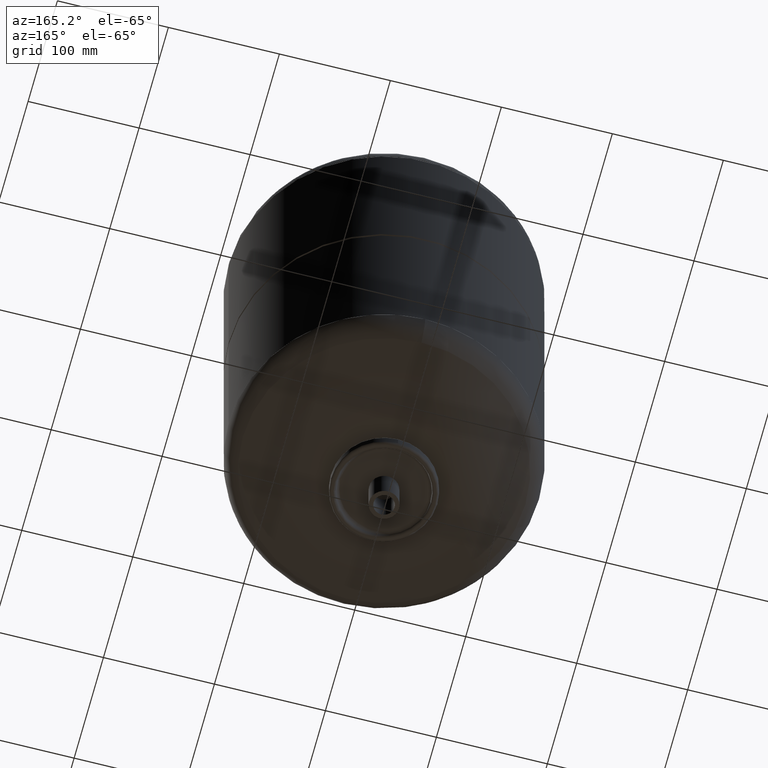
[diagram: clean part render]
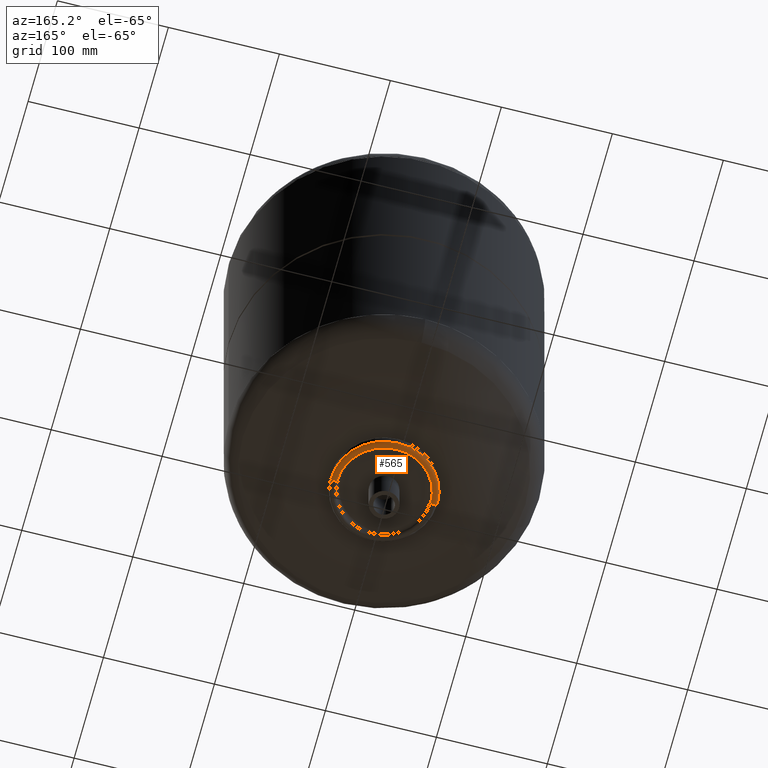
[diagram: same view with one face highlighted and labeled with its STEP entity id]
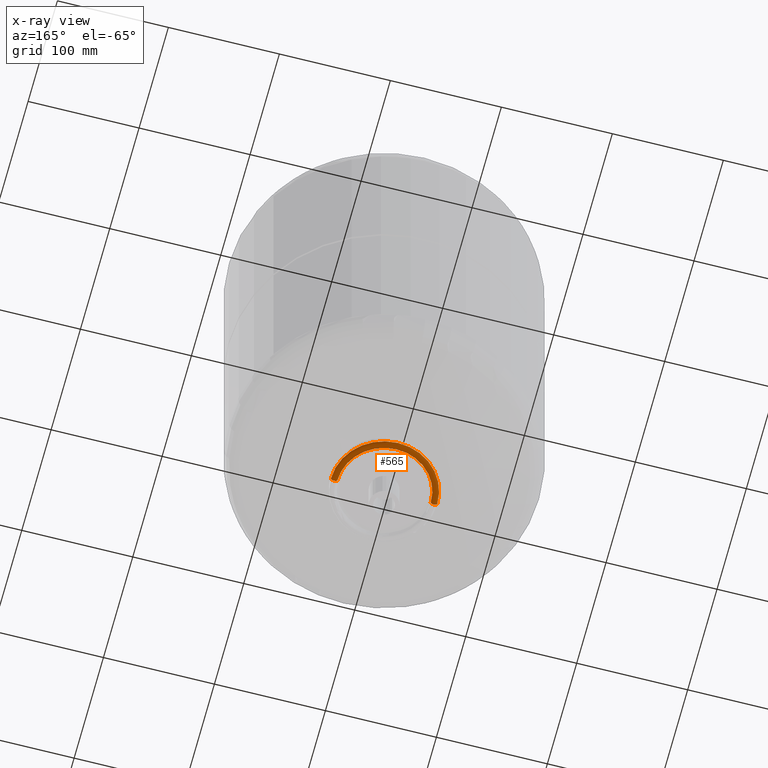
[diagram: x-ray of the same camera — body ghosted, the highlighted face saturated]
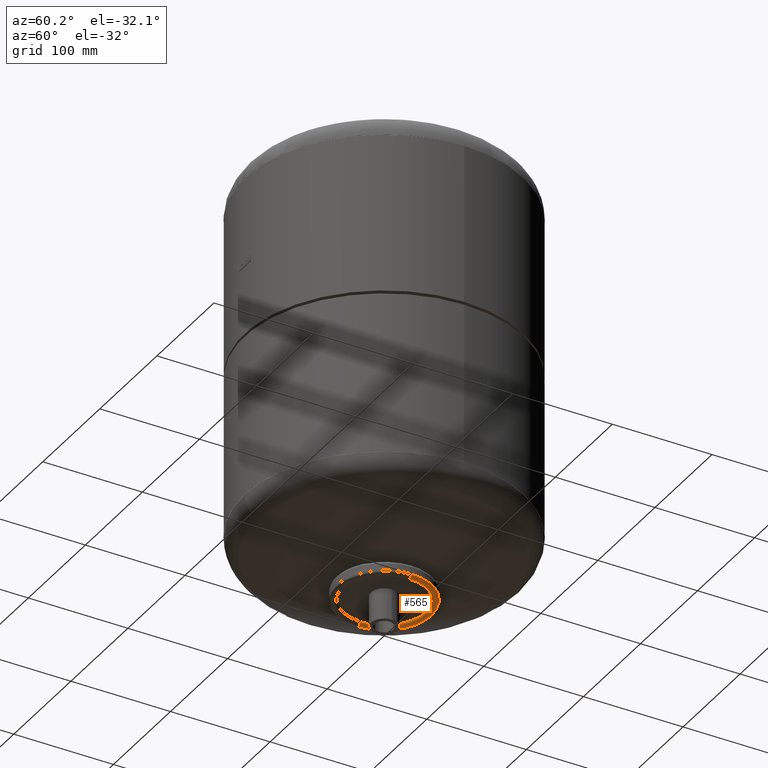
[diagram: same view with one face highlighted and labeled with its STEP entity id]
A machine part, auxiliary view. The second image highlights one B-rep face of the part: STEP entity #565.
The next image is the same camera in x-ray: the body ghosted, the highlighted face saturated — about 0% of this face is hidden behind the body in this view.
A second angle (auxiliary view) of the same face is appended — the face is thin or edge-on in the first view.
In plain terms, the highlighted toroidal blend (fillet) surface has major radius 45 mm and minor (blend) radius 3 mm.
Its self-contained STEP definition (entity closure, byte-faithful):
#130=CARTESIAN_POINT('',(0.0,48.0,27.999999999999993));
#131=VERTEX_POINT('',#130);
#140=CARTESIAN_POINT('',(-48.000000000000007,0.0,28.0));
#141=VERTEX_POINT('',#140);
#142=CARTESIAN_POINT('',(0.0,0.0,28.0));
#143=DIRECTION('',(0.0,0.0,-1.0));
#144=DIRECTION('',(0.0,1.0,0.0));
#145=AXIS2_PLACEMENT_3D('',#142,#143,#144);
#146=CIRCLE('',#145,48.000000000000007);
#147=EDGE_CURVE('',#141,#131,#146,.T.);
#407=CARTESIAN_POINT('',(-42.000000000000014,0.0,28.0));
#408=VERTEX_POINT('',#407);
#418=CARTESIAN_POINT('',(0.0,42.0,27.999999999999996));
#419=VERTEX_POINT('',#418);
#420=CARTESIAN_POINT('',(0.0,0.0,28.0));
#421=DIRECTION('',(0.0,0.0,-1.0));
#422=DIRECTION('',(0.0,1.0,0.0));
#423=AXIS2_PLACEMENT_3D('',#420,#421,#422);
#424=CIRCLE('',#423,42.000000000000014);
#425=EDGE_CURVE('',#408,#419,#424,.T.);
#427=CARTESIAN_POINT('',(42.000000000000014,-5.143347E-015,28.0));
#428=VERTEX_POINT('',#427);
#429=CARTESIAN_POINT('',(0.0,0.0,28.0));
#430=DIRECTION('',(0.0,0.0,-1.0));
#431=DIRECTION('',(0.0,1.0,0.0));
#432=AXIS2_PLACEMENT_3D('',#429,#430,#431);
#433=CIRCLE('',#432,42.000000000000014);
#434=EDGE_CURVE('',#419,#428,#433,.T.);
#469=CARTESIAN_POINT('',(-45.000000000000007,0.0,28.0));
#470=DIRECTION('',(0.0,1.0,0.0));
#471=DIRECTION('',(-1.0,0.0,0.0));
#472=AXIS2_PLACEMENT_3D('',#469,#470,#471);
#473=CIRCLE('',#472,3.000000000000000);
#474=EDGE_CURVE('',#408,#141,#473,.T.);
#483=CARTESIAN_POINT('',(48.000000000000007,-5.878110E-015,28.0));
#484=VERTEX_POINT('',#483);
#485=CARTESIAN_POINT('',(45.000000000000007,-5.510729E-015,28.0));
#486=DIRECTION('',(0.0,-1.0,0.0));
#487=DIRECTION('',(1.0,0.0,0.0));
#488=AXIS2_PLACEMENT_3D('',#485,#486,#487);
#489=CIRCLE('',#488,3.000000000000000);
#490=EDGE_CURVE('',#428,#484,#489,.T.);
#546=CARTESIAN_POINT('',(0.0,0.0,28.0));
#547=DIRECTION('',(0.0,-1.045403E-016,-1.0));
#548=DIRECTION('',(-1.0,0.0,0.0));
#549=AXIS2_PLACEMENT_3D('',#546,#547,#548);
#550=TOROIDAL_SURFACE('',#549,45.000000000000007,3.000000000000000);
#551=ORIENTED_EDGE('',*,*,#474,.T.);
#552=ORIENTED_EDGE('',*,*,#147,.T.);
#553=CARTESIAN_POINT('',(0.0,0.0,28.0));
#554=DIRECTION('',(0.0,0.0,-1.0));
#555=DIRECTION('',(0.0,1.0,0.0));
#556=AXIS2_PLACEMENT_3D('',#553,#554,#555);
#557=CIRCLE('',#556,48.000000000000007);
#558=EDGE_CURVE('',#131,#484,#557,.T.);
#559=ORIENTED_EDGE('',*,*,#558,.T.);
#560=ORIENTED_EDGE('',*,*,#490,.F.);
#561=ORIENTED_EDGE('',*,*,#434,.F.);
#562=ORIENTED_EDGE('',*,*,#425,.F.);
#563=EDGE_LOOP('',(#551,#552,#559,#560,#561,#562));
#564=FACE_OUTER_BOUND('',#563,.T.);
#565=ADVANCED_FACE('',(#564),#550,.T.);